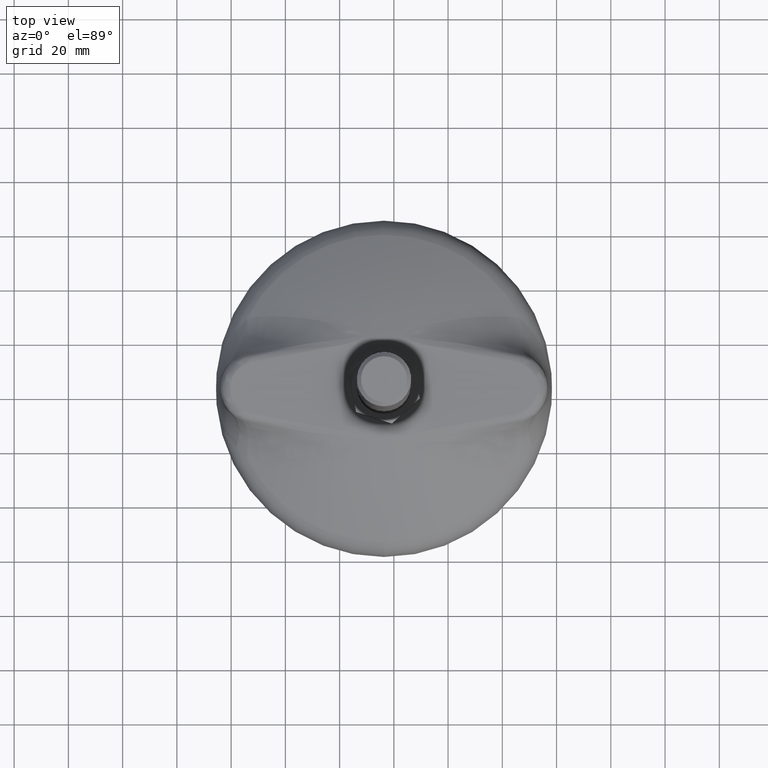
[diagram: clean part render]
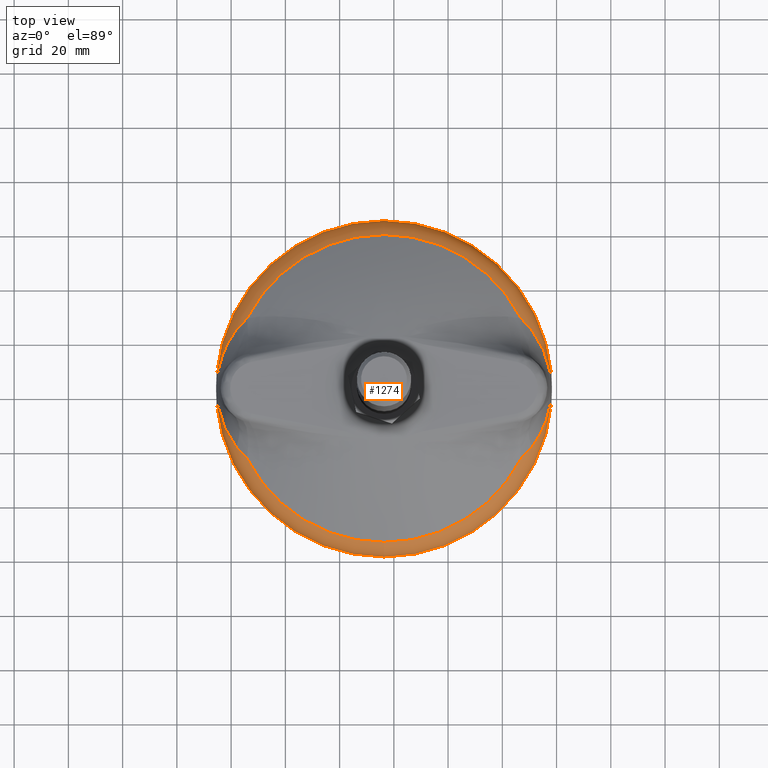
[diagram: same view with one face highlighted and labeled with its STEP entity id]
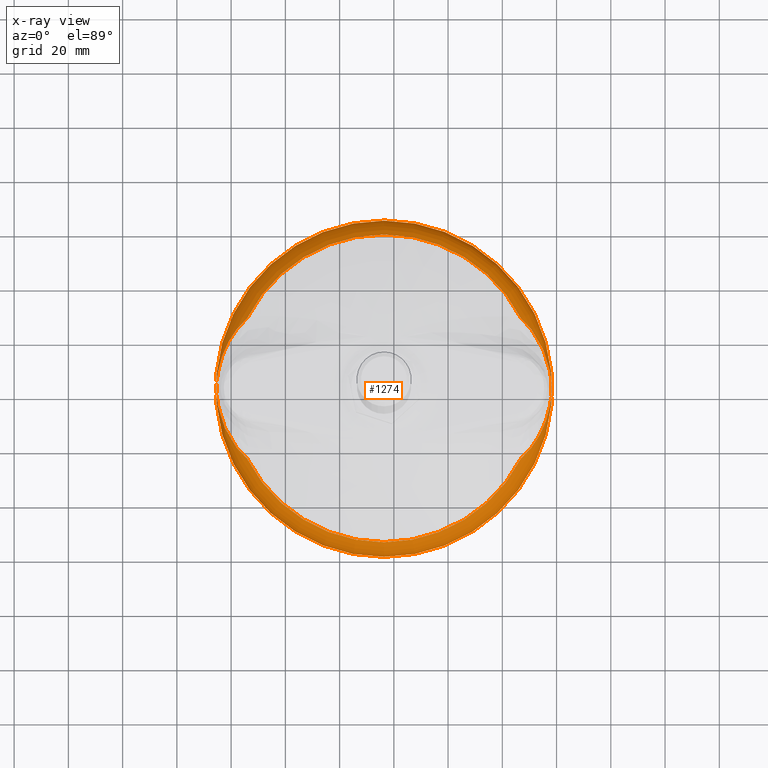
[diagram: x-ray of the same camera — body ghosted, the highlighted face saturated]
A machine part, top view. The second image highlights one B-rep face of the part: STEP entity #1274.
The next image is the same camera in x-ray: the body ghosted, the highlighted face saturated — about 0% of this face is hidden behind the body in this view.
In plain terms, the highlighted toroidal blend (fillet) surface has major radius 52 mm and minor (blend) radius 10 mm.
Its self-contained STEP definition (entity closure, byte-faithful):
#57=B_SPLINE_CURVE_WITH_KNOTS('',3,(#3326,#3327,#3328,#3329,#3330,#3331),
 .UNSPECIFIED.,.F.,.F.,(4,2,4),(3.55820684463569E-9,0.499999999984517,0.999999999962841),
 .UNSPECIFIED.);
#58=B_SPLINE_CURVE_WITH_KNOTS('',3,(#3333,#3334,#3335,#3336,#3337,#3338,
#3339,#3340,#3341,#3342,#3343,#3344,#3345,#3346,#3347,#3348,#3349,#3350,
#3351,#3352,#3353,#3354,#3355,#3356,#3357,#3358,#3359,#3360,#3361,#3362,
#3363,#3364,#3365,#3366,#3367,#3368,#3369,#3370,#3371,#3372,#3373,#3374,
#3375,#3376,#3377,#3378,#3379,#3380,#3381,#3382,#3383,#3384,#3385,#3386,
#3387,#3388,#3389,#3390,#3391,#3392,#3393,#3394,#3395,#3396,#3397,#3398,
#3399,#3400,#3401,#3402,#3403,#3404,#3405,#3406,#3407,#3408,#3409,#3410,
#3411,#3412,#3413,#3414,#3415,#3416,#3417,#3418,#3419,#3420,#3421,#3422,
#3423,#3424,#3425,#3426,#3427,#3428,#3429,#3430,#3431,#3432,#3433,#3434,
#3435,#3436,#3437,#3438,#3439,#3440,#3441,#3442,#3443,#3444,#3445,#3446,
#3447,#3448,#3449,#3450,#3451,#3452,#3453,#3454,#3455,#3456,#3457,#3458,
#3459,#3460,#3461,#3462,#3463,#3464,#3465,#3466,#3467,#3468,#3469,#3470,
#3471,#3472,#3473,#3474,#3475,#3476,#3477,#3478,#3479,#3480,#3481,#3482,
#3483,#3484,#3485,#3486,#3487,#3488,#3489,#3490,#3491,#3492,#3493,#3494,
#3495,#3496,#3497,#3498,#3499,#3500,#3501,#3502,#3503,#3504,#3505,#3506,
#3507,#3508,#3509,#3510,#3511,#3512,#3513,#3514,#3515,#3516,#3517,#3518,
#3519,#3520,#3521,#3522,#3523,#3524,#3525,#3526,#3527,#3528,#3529,#3530,
#3531,#3532,#3533,#3534,#3535,#3536,#3537,#3538,#3539,#3540,#3541,#3542,
#3543,#3544,#3545,#3546,#3547,#3548,#3549,#3550,#3551,#3552,#3553,#3554,
#3555,#3556,#3557,#3558,#3559,#3560,#3561,#3562,#3563,#3564,#3565,#3566,
#3567,#3568,#3569,#3570,#3571,#3572,#3573,#3574,#3575,#3576,#3577,#3578,
#3579,#3580,#3581,#3582,#3583,#3584,#3585,#3586,#3587,#3588),
 .UNSPECIFIED.,.F.,.F.,(4,3,3,3,3,3,3,3,3,3,3,3,3,3,3,3,3,3,3,3,3,3,3,3,
3,3,3,3,3,3,3,3,3,3,3,3,3,3,3,3,3,3,3,3,3,3,3,3,3,3,3,3,3,3,3,3,3,3,3,3,
3,3,3,3,3,3,3,3,3,3,3,3,3,3,3,3,3,3,3,3,3,3,3,3,3,4),(1.44692526029567E-5,
0.0320838109708294,0.0616225803048672,0.0625,0.0963312664883411,0.123302537881147,
0.125,0.158717675990419,0.185279686610295,0.1875,0.200849301318562,0.216433236393102,
0.21875,0.247549266973116,0.25,0.282303697837557,0.309676901226445,0.3125,
0.34221437989486,0.370264382404118,0.37192875978972,0.375,0.395901863013811,
0.403250381690188,0.40625,0.419015668986609,0.434886546365988,0.4375,0.447513717649022,
0.450902995135694,0.453125,0.460170099697721,0.467215199395441,0.46875,
0.474481669662616,0.475599624591294,0.479881975787905,0.484230174122877,
0.484375,0.489305721254212,0.4921875,0.493115599676204,0.496808731341628,
0.497668312783484,0.5,0.502236149073312,0.511252190969143,0.515625,0.515690254387305,
0.520057766537639,0.525006068925118,0.528577273928898,0.53125,0.536908707195816,
0.545115130849648,0.546875,0.553225467030536,0.5625,0.569261932622031,0.584349787457553,
0.585157225387494,0.59375,0.600973256815271,0.623169606540888,0.625,0.632429084818905,
0.660073794782602,0.6875,0.694947110174329,0.727003176622456,0.750000000000001,
0.757327503305466,0.781250000000001,0.788564466422782,0.804198834923986,
0.812500000000001,0.819810171029507,0.853469609596223,0.875,0.882021285274495,
0.915219150054964,0.9375,0.944045680349106,0.975070318365031,0.990594853399532,
1.),.UNSPECIFIED.);
#59=B_SPLINE_CURVE_WITH_KNOTS('',3,(#3590,#3591,#3592,#3593,#3594,#3595),
 .UNSPECIFIED.,.F.,.F.,(4,2,4),(0.,0.5,0.999999998530311),.UNSPECIFIED.);
#60=B_SPLINE_CURVE_WITH_KNOTS('',3,(#3599,#3600,#3601,#3602,#3603,#3604),
 .UNSPECIFIED.,.F.,.F.,(4,2,4),(1.53131502328517E-9,0.5,0.999999999999999),
 .UNSPECIFIED.);
#61=B_SPLINE_CURVE_WITH_KNOTS('',3,(#3606,#3607,#3608,#3609,#3610,#3611,
#3612,#3613,#3614,#3615,#3616,#3617,#3618,#3619,#3620,#3621,#3622,#3623,
#3624,#3625,#3626,#3627,#3628,#3629,#3630,#3631,#3632,#3633,#3634,#3635,
#3636,#3637,#3638,#3639,#3640,#3641,#3642,#3643,#3644,#3645,#3646,#3647,
#3648,#3649,#3650,#3651,#3652,#3653,#3654,#3655,#3656,#3657,#3658,#3659,
#3660,#3661,#3662,#3663,#3664,#3665,#3666,#3667,#3668,#3669,#3670,#3671,
#3672,#3673,#3674,#3675,#3676,#3677,#3678,#3679,#3680,#3681,#3682,#3683,
#3684,#3685,#3686,#3687,#3688,#3689,#3690,#3691,#3692,#3693,#3694,#3695,
#3696,#3697,#3698,#3699,#3700,#3701,#3702,#3703,#3704,#3705,#3706,#3707,
#3708,#3709,#3710,#3711,#3712,#3713,#3714,#3715,#3716,#3717,#3718,#3719,
#3720,#3721,#3722,#3723,#3724,#3725,#3726,#3727,#3728,#3729,#3730,#3731,
#3732,#3733,#3734,#3735,#3736,#3737,#3738,#3739,#3740,#3741,#3742,#3743,
#3744,#3745,#3746,#3747,#3748,#3749,#3750,#3751,#3752,#3753,#3754,#3755,
#3756,#3757,#3758,#3759,#3760,#3761,#3762,#3763,#3764,#3765,#3766,#3767,
#3768,#3769,#3770,#3771,#3772,#3773,#3774,#3775,#3776,#3777,#3778,#3779,
#3780,#3781,#3782,#3783,#3784,#3785,#3786,#3787,#3788,#3789,#3790,#3791,
#3792,#3793,#3794,#3795,#3796,#3797,#3798,#3799,#3800,#3801,#3802,#3803,
#3804,#3805,#3806,#3807,#3808,#3809,#3810,#3811,#3812,#3813,#3814,#3815,
#3816,#3817,#3818,#3819,#3820,#3821,#3822,#3823,#3824,#3825,#3826,#3827,
#3828,#3829,#3830,#3831,#3832,#3833,#3834,#3835,#3836,#3837,#3838,#3839,
#3840,#3841,#3842,#3843,#3844,#3845,#3846,#3847,#3848,#3849,#3850,#3851,
#3852,#3853,#3854,#3855,#3856,#3857,#3858,#3859,#3860,#3861,#3862,#3863,
#3864,#3865,#3866,#3867),.UNSPECIFIED.,.F.,.F.,(4,3,3,3,3,3,3,3,3,3,3,3,
3,3,3,3,3,3,3,3,3,3,3,3,3,3,3,3,3,3,3,3,3,3,3,3,3,3,3,3,3,3,3,3,3,3,3,3,
3,3,3,3,3,3,3,3,3,3,3,3,3,3,3,3,3,3,3,3,3,3,3,3,3,3,3,3,3,3,3,3,3,3,3,3,
3,3,3,4),(3.44096211603762E-15,0.034034216426295,0.0553053702764947,0.0625,
0.0708013597669976,0.0863496654634957,0.09375,0.117423645351877,0.125,0.159587233360697,
0.179516456591497,0.214009235618722,0.241737337654534,0.249999999999999,
0.257334370389645,0.272922248348122,0.304063577737818,0.312499999999999,
0.340640234777023,0.36632470879307,0.374999999999999,0.395554806343867,
0.397565505342242,0.406249999999999,0.42111839135818,0.429040797523615,
0.437499999999999,0.444970994188768,0.453124999999999,0.460356694142986,
0.461177026214705,0.46712848599099,0.468749999999999,0.469474086069111,
0.475524391477148,0.477954107914681,0.483032030716594,0.484374999999999,
0.486663113710319,0.491140558477904,0.495031470758377,0.495676276426889,
0.500000000000001,0.504342069446232,0.504785089307414,0.509322325731437,
0.513800992032918,0.515624999999999,0.52037583990045,0.522509799810186,
0.528142114619892,0.530986704571709,0.531249999999999,0.537905126769628,
0.539298619601583,0.546874999999999,0.547474943167713,0.557133080791351,
0.562499999999999,0.56358349846204,0.57866674923102,0.593749999999999,0.595339533947483,
0.617012668245295,0.624999999999999,0.626855554232873,0.642572555751263,
0.656249999999999,0.65825580533241,0.687499999999999,0.689534404266117,
0.722071156067809,0.749999999999999,0.751918635849568,0.784657048620632,
0.812499999999999,0.814317092317138,0.832820536878801,0.843749999999999,
0.845571899292108,0.873225787966639,0.875,0.876686891630682,0.910805352017995,
0.9375,0.938514403403925,0.972231675969963,0.999985535599159),
 .UNSPECIFIED.);
#62=B_SPLINE_CURVE_WITH_KNOTS('',3,(#3868,#3869,#3870,#3871,#3872,#3873),
 .UNSPECIFIED.,.F.,.F.,(4,2,4),(3.71510253484044E-11,0.500000000015478,
0.999999997276194),.UNSPECIFIED.);
#93=TOROIDAL_SURFACE('',#1486,52.0000000000002,10.);
#255=FACE_OUTER_BOUND('',#338,.T.);
#338=EDGE_LOOP('',(#1010,#1011,#1012,#1013,#1014,#1015,#1016,#1017,#1018,
#1019,#1020,#1021));
#483=CIRCLE('',#1476,61.9939021775577);
#490=CIRCLE('',#1484,56.7491782872209);
#491=CIRCLE('',#1485,56.7491782872209);
#492=CIRCLE('',#1487,10.);
#493=CIRCLE('',#1488,56.7491782872209);
#596=VERTEX_POINT('',#2798);
#603=VERTEX_POINT('',#2830);
#604=VERTEX_POINT('',#2831);
#607=VERTEX_POINT('',#3308);
#608=VERTEX_POINT('',#3325);
#609=VERTEX_POINT('',#3332);
#610=VERTEX_POINT('',#3589);
#611=VERTEX_POINT('',#3596);
#612=VERTEX_POINT('',#3598);
#613=VERTEX_POINT('',#3605);
#744=EDGE_CURVE('',#596,#596,#483,.T.);
#752=EDGE_CURVE('',#603,#604,#490,.T.);
#757=EDGE_CURVE('',#604,#607,#491,.T.);
#758=EDGE_CURVE('',#596,#604,#492,.T.);
#759=EDGE_CURVE('',#607,#608,#57,.T.);
#760=EDGE_CURVE('',#608,#609,#58,.T.);
#761=EDGE_CURVE('',#609,#610,#59,.T.);
#762=EDGE_CURVE('',#610,#611,#493,.T.);
#763=EDGE_CURVE('',#611,#612,#60,.T.);
#764=EDGE_CURVE('',#612,#613,#61,.T.);
#765=EDGE_CURVE('',#613,#603,#62,.T.);
#1010=ORIENTED_EDGE('',*,*,#744,.F.);
#1011=ORIENTED_EDGE('',*,*,#758,.T.);
#1012=ORIENTED_EDGE('',*,*,#757,.T.);
#1013=ORIENTED_EDGE('',*,*,#759,.T.);
#1014=ORIENTED_EDGE('',*,*,#760,.T.);
#1015=ORIENTED_EDGE('',*,*,#761,.T.);
#1016=ORIENTED_EDGE('',*,*,#762,.T.);
#1017=ORIENTED_EDGE('',*,*,#763,.T.);
#1018=ORIENTED_EDGE('',*,*,#764,.T.);
#1019=ORIENTED_EDGE('',*,*,#765,.T.);
#1020=ORIENTED_EDGE('',*,*,#752,.T.);
#1021=ORIENTED_EDGE('',*,*,#758,.F.);
#1274=ADVANCED_FACE('',(#255),#93,.T.);
#1476=AXIS2_PLACEMENT_3D('',#2800,#1730,#1731);
#1484=AXIS2_PLACEMENT_3D('',#2832,#1747,#1748);
#1485=AXIS2_PLACEMENT_3D('',#3322,#1749,#1750);
#1486=AXIS2_PLACEMENT_3D('',#3323,#1751,#1752);
#1487=AXIS2_PLACEMENT_3D('',#3324,#1753,#1754);
#1488=AXIS2_PLACEMENT_3D('',#3597,#1755,#1756);
#1730=DIRECTION('center_axis',(0.,-1.171453E-15,-1.));
#1731=DIRECTION('ref_axis',(0.,1.,-1.171453E-15));
#1747=DIRECTION('center_axis',(0.,-1.171453E-15,-1.));
#1748=DIRECTION('ref_axis',(0.,1.,-1.171453E-15));
#1749=DIRECTION('center_axis',(0.,-1.171453E-15,-1.));
#1750=DIRECTION('ref_axis',(0.,1.,-1.171453E-15));
#1751=DIRECTION('center_axis',(0.,-1.171453E-15,-1.));
#1752=DIRECTION('ref_axis',(0.,1.,-1.17145300077073E-15));
#1753=DIRECTION('center_axis',(-1.,1.22464679914735E-16,-1.43461616680156E-31));
#1754=DIRECTION('ref_axis',(-1.22464679914735E-16,-1.,1.17145300418618E-15));
#1755=DIRECTION('center_axis',(0.,-1.171453E-15,-1.));
#1756=DIRECTION('ref_axis',(0.,1.,-1.171453E-15));
#2798=CARTESIAN_POINT('',(7.59206338684002E-15,-61.9939021775578,0.349176871077005));
#2800=CARTESIAN_POINT('Origin',(0.,-4.270265E-14,0.349176871076932));
#2830=CARTESIAN_POINT('',(50.5336448544281,-25.8228575586019,8.8003089338437));
#2831=CARTESIAN_POINT('',(-6.94976995436875E-15,-56.7491782872209,8.80030892666654));
#2832=CARTESIAN_POINT('Origin',(0.,-2.290244E-14,8.80030892666647));
#3308=CARTESIAN_POINT('',(-50.5336448545111,-25.8228575586374,8.80030893379514));
#3322=CARTESIAN_POINT('Origin',(0.,-2.290244E-14,8.80030892666647));
#3323=CARTESIAN_POINT('Origin',(0.,-4.352073E-14,7.477500617E-6));
#3324=CARTESIAN_POINT('Origin',(-6.36816335556626E-15,-52.0000000000002,
7.47750067791556E-6));
#3325=CARTESIAN_POINT('',(-54.4117059548261,-21.740543015552,7.517719859501));
#3326=CARTESIAN_POINT('Ctrl Pts',(-50.5336448435174,-25.8228575332502,8.80030894531245));
#3327=CARTESIAN_POINT('Ctrl Pts',(-51.2570590696162,-25.2108289293928,8.60296204754627));
#3328=CARTESIAN_POINT('Ctrl Pts',(-51.9404912244675,-24.5647809432962,8.39299832195783));
#3329=CARTESIAN_POINT('Ctrl Pts',(-53.2317199071242,-23.2044923502681,7.96141510363573));
#3330=CARTESIAN_POINT('Ctrl Pts',(-53.8395058069299,-22.490249545429,7.73977047035879));
#3331=CARTESIAN_POINT('Ctrl Pts',(-54.4109568990307,-21.7415244884193,7.5180105497073));
#3332=CARTESIAN_POINT('',(-54.4166471951734,21.7340656229396,7.51580128591876));
#3333=CARTESIAN_POINT('Ctrl Pts',(-54.4130313307887,-21.7428244980441,7.51589722403689));
#3334=CARTESIAN_POINT('Ctrl Pts',(-54.7198114380677,-21.3405099720534,7.39689217669323));
#3335=CARTESIAN_POINT('Ctrl Pts',(-55.0166531963345,-20.9331373699154,7.27585142081938));
#3336=CARTESIAN_POINT('Ctrl Pts',(-55.3038526039356,-20.5208347680797,7.15291550914573));
#3337=CARTESIAN_POINT('Ctrl Pts',(-55.5683892797596,-20.1410667155125,7.03968039600545));
#3338=CARTESIAN_POINT('Ctrl Pts',(-55.8247460913709,-19.7571161933036,6.92483755666388));
#3339=CARTESIAN_POINT('Ctrl Pts',(-56.0731891900876,-19.3690996981028,6.80850344788314));
#3340=CARTESIAN_POINT('Ctrl Pts',(-56.0805689446559,-19.3575740549361,6.80504785915818));
#3341=CARTESIAN_POINT('Ctrl Pts',(-56.0879417132513,-19.3460448224977,6.80159095185634));
#3342=CARTESIAN_POINT('Ctrl Pts',(-56.0953074983247,-19.3345120023057,6.79813272786053));
#3343=CARTESIAN_POINT('Ctrl Pts',(-56.3793150708637,-18.88983322949,6.66479163895226));
#3344=CARTESIAN_POINT('Ctrl Pts',(-56.6529366298109,-18.4398196405035,6.52949173313023));
#3345=CARTESIAN_POINT('Ctrl Pts',(-56.9163545360694,-17.9845414139642,6.39233725763171));
#3346=CARTESIAN_POINT('Ctrl Pts',(-57.1263589661982,-17.6215803462355,6.28299371346722));
#3347=CARTESIAN_POINT('Ctrl Pts',(-57.3298791552493,-17.2552736877945,6.17247163248903));
#3348=CARTESIAN_POINT('Ctrl Pts',(-57.5270270089824,-16.8856698605232,6.06082783637365));
#3349=CARTESIAN_POINT('Ctrl Pts',(-57.5394346930197,-16.8624084989567,6.05380142994471));
#3350=CARTESIAN_POINT('Ctrl Pts',(-57.5518171297453,-16.8391340902513,6.04677057750715));
#3351=CARTESIAN_POINT('Ctrl Pts',(-57.5641743216849,-16.8158466343799,6.03973528745821));
#3352=CARTESIAN_POINT('Ctrl Pts',(-57.8096324025137,-16.3532743725352,5.8999892349638));
#3353=CARTESIAN_POINT('Ctrl Pts',(-58.0451293037977,-15.8855494532665,5.75848881610017));
#3354=CARTESIAN_POINT('Ctrl Pts',(-58.2707121480503,-15.4126735676376,5.61530077678415));
#3355=CARTESIAN_POINT('Ctrl Pts',(-58.4484211309114,-15.0401528073239,5.50250052856917));
#3356=CARTESIAN_POINT('Ctrl Pts',(-58.6199783290762,-14.6644359592659,5.38865312685408));
#3357=CARTESIAN_POINT('Ctrl Pts',(-58.7854239212598,-14.2855383700406,5.27379510787823));
#3358=CARTESIAN_POINT('Ctrl Pts',(-58.7992534866813,-14.2538663929932,5.2641941480301));
#3359=CARTESIAN_POINT('Ctrl Pts',(-58.8130402359899,-14.2221721215841,5.25458610307931));
#3360=CARTESIAN_POINT('Ctrl Pts',(-58.8267841631542,-14.1904555450028,5.24497098860248));
#3361=CARTESIAN_POINT('Ctrl Pts',(-58.9094174643207,-13.9997643842229,5.18716155460144));
#3362=CARTESIAN_POINT('Ctrl Pts',(-58.9904659370942,-13.808355122697,5.12912317872785));
#3363=CARTESIAN_POINT('Ctrl Pts',(-59.0700158082692,-13.6160184500555,5.07079645423933));
#3364=CARTESIAN_POINT('Ctrl Pts',(-59.1628820937769,-13.3914851844283,5.00270600771717));
#3365=CARTESIAN_POINT('Ctrl Pts',(-59.253560579569,-13.1660242880102,4.93432454550135));
#3366=CARTESIAN_POINT('Ctrl Pts',(-59.3418350409561,-12.9402380522317,4.86584160824742));
#3367=CARTESIAN_POINT('Ctrl Pts',(-59.3549582385684,-12.9066718616971,4.85566068950228));
#3368=CARTESIAN_POINT('Ctrl Pts',(-59.3680308190733,-12.8730924200147,4.84547568587157));
#3369=CARTESIAN_POINT('Ctrl Pts',(-59.3810532684298,-12.8394986229387,4.83528628745271));
#3370=CARTESIAN_POINT('Ctrl Pts',(-59.542932967569,-12.4219002422705,4.70862372918122));
#3371=CARTESIAN_POINT('Ctrl Pts',(-59.6969278953514,-12.0024333727269,4.58138721595264));
#3372=CARTESIAN_POINT('Ctrl Pts',(-59.8431878381598,-11.5811202275399,4.45363427040419));
#3373=CARTESIAN_POINT('Ctrl Pts',(-59.8556341296812,-11.545267716414,4.4427628699887));
#3374=CARTESIAN_POINT('Ctrl Pts',(-59.8680245571211,-11.5094019330197,4.43188768854127));
#3375=CARTESIAN_POINT('Ctrl Pts',(-59.8803591556971,-11.4735228660072,4.4210087726739));
#3376=CARTESIAN_POINT('Ctrl Pts',(-60.0429444479236,-11.0005923073736,4.27761118218783));
#3377=CARTESIAN_POINT('Ctrl Pts',(-60.1958295462521,-10.5253495354964,4.13355772338987));
#3378=CARTESIAN_POINT('Ctrl Pts',(-60.3391166009082,-10.0477846431564,3.98896200385565));
#3379=CARTESIAN_POINT('Ctrl Pts',(-60.4605338364773,-9.64311020015145,3.86643584416099));
#3380=CARTESIAN_POINT('Ctrl Pts',(-60.5750602867069,-9.23676847047709,3.74352036128011));
#3381=CARTESIAN_POINT('Ctrl Pts',(-60.6827864393119,-8.82876072133846,3.62028529959608));
#3382=CARTESIAN_POINT('Ctrl Pts',(-60.6938966321884,-8.78668138704097,3.60757561609442));
#3383=CARTESIAN_POINT('Ctrl Pts',(-60.7049345159362,-8.74458482438421,3.59486225970671));
#3384=CARTESIAN_POINT('Ctrl Pts',(-60.7159000799022,-8.70247082638144,3.58214541607595));
#3385=CARTESIAN_POINT('Ctrl Pts',(-60.8313175553728,-8.25920212205265,3.44829493721653));
#3386=CARTESIAN_POINT('Ctrl Pts',(-60.9387284019669,-7.81398030951274,3.31403944946452));
#3387=CARTESIAN_POINT('Ctrl Pts',(-61.0381051047074,-7.36671880376226,3.17964875499826));
#3388=CARTESIAN_POINT('Ctrl Pts',(-61.1319154676056,-6.94450954336421,3.05278562238914));
#3389=CARTESIAN_POINT('Ctrl Pts',(-61.2185670361181,-6.52048249136002,2.92580213684896));
#3390=CARTESIAN_POINT('Ctrl Pts',(-61.2980831565227,-6.09458892002283,2.79892218168473));
#3391=CARTESIAN_POINT('Ctrl Pts',(-61.3028013319506,-6.06931806207645,2.79139362164301));
#3392=CARTESIAN_POINT('Ctrl Pts',(-61.3074943981135,-6.04404064046004,2.78386542484204));
#3393=CARTESIAN_POINT('Ctrl Pts',(-61.3121623647992,-6.01875664806855,2.77633763754625));
#3394=CARTESIAN_POINT('Ctrl Pts',(-61.3207760644984,-5.97210063436584,2.76244677166617));
#3395=CARTESIAN_POINT('Ctrl Pts',(-61.3293041241839,-5.92542211305212,2.74855734697086));
#3396=CARTESIAN_POINT('Ctrl Pts',(-61.3377464571645,-5.87872010720623,2.73467018181605));
#3397=CARTESIAN_POINT('Ctrl Pts',(-61.3952022324854,-5.5608814290743,2.64015864776396));
#3398=CARTESIAN_POINT('Ctrl Pts',(-61.4486836838486,-5.24197616102857,2.54574710778726));
#3399=CARTESIAN_POINT('Ctrl Pts',(-61.4981434202534,-4.9219089643923,2.45176200854458));
#3400=CARTESIAN_POINT('Ctrl Pts',(-61.5155320997438,-4.80938216376101,2.41871943924682));
#3401=CARTESIAN_POINT('Ctrl Pts',(-61.532424013043,-4.69671204657505,2.38572946894297));
#3402=CARTESIAN_POINT('Ctrl Pts',(-61.5488181746382,-4.58389552733605,2.35280588483252));
#3403=CARTESIAN_POINT('Ctrl Pts',(-61.5555101665159,-4.53784454595305,2.33936668843504));
#3404=CARTESIAN_POINT('Ctrl Pts',(-61.5621191595373,-4.49176865899814,2.32593884606735));
#3405=CARTESIAN_POINT('Ctrl Pts',(-61.5686449736931,-4.44566613856631,2.31252418215805));
#3406=CARTESIAN_POINT('Ctrl Pts',(-61.5964173016286,-4.24946467074755,2.25543453229409));
#3407=CARTESIAN_POINT('Ctrl Pts',(-61.622675983725,-4.05283545402179,2.19859534259904));
#3408=CARTESIAN_POINT('Ctrl Pts',(-61.6474124206739,-3.85565090757627,2.14214592659824));
#3409=CARTESIAN_POINT('Ctrl Pts',(-61.6781659172616,-3.61050184715275,2.07196536963519));
#3410=CARTESIAN_POINT('Ctrl Pts',(-61.7065604643837,-3.36450809681998,2.00237795532341));
#3411=CARTESIAN_POINT('Ctrl Pts',(-61.7324632154007,-3.1182170897093,1.93417752062844));
#3412=CARTESIAN_POINT('Ctrl Pts',(-61.7367286153,-3.07766040767014,1.92294697113618));
#3413=CARTESIAN_POINT('Ctrl Pts',(-61.7409275197424,-3.03709013362612,1.91175089916122));
#3414=CARTESIAN_POINT('Ctrl Pts',(-61.7450596520674,-2.99650079590951,1.90059411582734));
#3415=CARTESIAN_POINT('Ctrl Pts',(-61.7608923440472,-2.84097855431882,1.85784574764404));
#3416=CARTESIAN_POINT('Ctrl Pts',(-61.775740613008,-2.68523111003019,1.81567672325395));
#3417=CARTESIAN_POINT('Ctrl Pts',(-61.7895720961501,-2.52917211853212,1.77442765115203));
#3418=CARTESIAN_POINT('Ctrl Pts',(-61.7942535477412,-2.47635185287095,1.76046634763606));
#3419=CARTESIAN_POINT('Ctrl Pts',(-61.7988186534822,-2.4234962081356,1.74661017284609));
#3420=CARTESIAN_POINT('Ctrl Pts',(-61.8032665711175,-2.37060286803741,1.73287148821184));
#3421=CARTESIAN_POINT('Ctrl Pts',(-61.806182618759,-2.33592607941515,1.72386442868175));
#3422=CARTESIAN_POINT('Ctrl Pts',(-61.8090486268175,-2.30123650738852,1.7149052619928));
#3423=CARTESIAN_POINT('Ctrl Pts',(-61.8118638448828,-2.26652749794164,1.70600204732307));
#3424=CARTESIAN_POINT('Ctrl Pts',(-61.8207897893123,-2.15647893959215,1.67777347051568));
#3425=CARTESIAN_POINT('Ctrl Pts',(-61.8292078984563,-2.04625488629552,1.65008421544199));
#3426=CARTESIAN_POINT('Ctrl Pts',(-61.8370871734894,-1.93577788402633,1.62322368598416));
#3427=CARTESIAN_POINT('Ctrl Pts',(-61.8449664485225,-1.82530088175714,1.59636315652633));
#3428=CARTESIAN_POINT('Ctrl Pts',(-61.8523068597014,-1.71457019202486,1.57033186404392));
#3429=CARTESIAN_POINT('Ctrl Pts',(-61.859087978244,-1.60354984648908,1.54538655773517));
#3430=CARTESIAN_POINT('Ctrl Pts',(-61.8605652695933,-1.57936366023798,1.53995213198589));
#3431=CARTESIAN_POINT('Ctrl Pts',(-61.8620159250347,-1.5551623748007,1.53457027912123));
#3432=CARTESIAN_POINT('Ctrl Pts',(-61.8634394270629,-1.53094211571421,1.52924631916706));
#3433=CARTESIAN_POINT('Ctrl Pts',(-61.8687554553246,-1.44049223980566,1.50936414055462));
#3434=CARTESIAN_POINT('Ctrl Pts',(-61.8736823475546,-1.34998076203832,1.49032432584619));
#3435=CARTESIAN_POINT('Ctrl Pts',(-61.8782063661399,-1.25914474483295,1.47235316439281));
#3436=CARTESIAN_POINT('Ctrl Pts',(-61.8790887702512,-1.24142729440161,1.46884791204864));
#3437=CARTESIAN_POINT('Ctrl Pts',(-61.8799558601422,-1.22369762302633,1.46538321919506));
#3438=CARTESIAN_POINT('Ctrl Pts',(-61.8808075522817,-1.20595396244262,1.46196062511028));
#3439=CARTESIAN_POINT('Ctrl Pts',(-61.8840699779477,-1.13798647629114,1.44885030241436));
#3440=CARTESIAN_POINT('Ctrl Pts',(-61.8871053891752,-1.06980287969836,1.4363659477061));
#3441=CARTESIAN_POINT('Ctrl Pts',(-61.8899019162779,-1.00123720645759,1.42464463090695));
#3442=CARTESIAN_POINT('Ctrl Pts',(-61.8927414438956,-0.931617240104132,
1.41274308247019));
#3443=CARTESIAN_POINT('Ctrl Pts',(-61.8953329074867,-0.861595483850795,
1.40163455575615));
#3444=CARTESIAN_POINT('Ctrl Pts',(-61.8976359855162,-0.791794822965323,
1.39160035431715));
#3445=CARTESIAN_POINT('Ctrl Pts',(-61.8977126943667,-0.789469965367366,
1.39126614416557));
#3446=CARTESIAN_POINT('Ctrl Pts',(-61.8977890930856,-0.787145160476482,
1.39093308566767));
#3447=CARTESIAN_POINT('Ctrl Pts',(-61.8978651810585,-0.78482040500789,1.39060118575465));
#3448=CARTESIAN_POINT('Ctrl Pts',(-61.9004556613833,-0.705672110327668,
1.37930136842986));
#3449=CARTESIAN_POINT('Ctrl Pts',(-61.9026918665701,-0.626385201573858,
1.36931916581122));
#3450=CARTESIAN_POINT('Ctrl Pts',(-61.9045454256489,-0.546925021632316,
1.36093615896032));
#3451=CARTESIAN_POINT('Ctrl Pts',(-61.9056287452856,-0.500484217967653,
1.35603667879845));
#3452=CARTESIAN_POINT('Ctrl Pts',(-61.9065814909628,-0.453984642640518,
1.35168267989198));
#3453=CARTESIAN_POINT('Ctrl Pts',(-61.9073991991869,-0.407423254607008,
1.34792307062733));
#3454=CARTESIAN_POINT('Ctrl Pts',(-61.9076625485988,-0.392427790704497,
1.34671225867784));
#3455=CARTESIAN_POINT('Ctrl Pts',(-61.9079116455957,-0.377440218111502,
1.34556423738186));
#3456=CARTESIAN_POINT('Ctrl Pts',(-61.9081465327287,-0.362453971045446,
1.34447973314647));
#3457=CARTESIAN_POINT('Ctrl Pts',(-61.9090812050826,-0.302820092266472,
1.34016423015075));
#3458=CARTESIAN_POINT('Ctrl Pts',(-61.9097908089121,-0.243206755074192,
1.33685515421075));
#3459=CARTESIAN_POINT('Ctrl Pts',(-61.9102702908421,-0.18319192394278,1.33461279380265));
#3460=CARTESIAN_POINT('Ctrl Pts',(-61.9103818909165,-0.169223389985647,
1.33409088135344));
#3461=CARTESIAN_POINT('Ctrl Pts',(-61.9104809806898,-0.15523300454755,1.33362694606525));
#3462=CARTESIAN_POINT('Ctrl Pts',(-61.910567413591,-0.141215250376614,1.33322211460338));
#3463=CARTESIAN_POINT('Ctrl Pts',(-61.9108018701314,-0.103190908978451,
1.33212397509206));
#3464=CARTESIAN_POINT('Ctrl Pts',(-61.9109409986416,-0.065302799923005,
1.33147146518826));
#3465=CARTESIAN_POINT('Ctrl Pts',(-61.9109864598013,-0.0274675857086537,
1.33125796853167));
#3466=CARTESIAN_POINT('Ctrl Pts',(-61.9110300582435,0.00881737507197043,
1.33105321964966));
#3467=CARTESIAN_POINT('Ctrl Pts',(-61.9109873858037,0.0450686889823404,
1.33125281483718));
#3468=CARTESIAN_POINT('Ctrl Pts',(-61.9108587255953,0.0812788279966683,
1.33185648274423));
#3469=CARTESIAN_POINT('Ctrl Pts',(-61.9103399740309,0.227276308354075,1.33429044173476));
#3470=CARTESIAN_POINT('Ctrl Pts',(-61.9084216846743,0.372732594177027,1.34334404008062));
#3471=CARTESIAN_POINT('Ctrl Pts',(-61.9051962239082,0.518277272373761,1.35798553927764));
#3472=CARTESIAN_POINT('Ctrl Pts',(-61.9036318651652,0.58886690478288,1.36508671301371));
#3473=CARTESIAN_POINT('Ctrl Pts',(-61.9017531036238,0.659720378097506,1.37352070973156));
#3474=CARTESIAN_POINT('Ctrl Pts',(-61.8996002231833,0.730042735187447,1.38299814549741));
#3475=CARTESIAN_POINT('Ctrl Pts',(-61.8995680962615,0.731092138967336,1.38313957501326));
#3476=CARTESIAN_POINT('Ctrl Pts',(-61.8995359058515,0.732141504711947,1.3832812474979));
#3477=CARTESIAN_POINT('Ctrl Pts',(-61.8995036520797,0.733190829077619,1.38342316199372));
#3478=CARTESIAN_POINT('Ctrl Pts',(-61.8973448893335,0.803422687900032,1.39292157750898));
#3479=CARTESIAN_POINT('Ctrl Pts',(-61.8949065858137,0.87341267659998,1.40348590064834));
#3480=CARTESIAN_POINT('Ctrl Pts',(-61.8922070985242,0.943223305335343,1.41492785904248));
#3481=CARTESIAN_POINT('Ctrl Pts',(-61.8891486343597,1.02231732704656,1.42789136505923));
#3482=CARTESIAN_POINT('Ctrl Pts',(-61.8857566861731,1.10119524487972,1.44196780050352));
#3483=CARTESIAN_POINT('Ctrl Pts',(-61.8820501670064,1.17988283158361,1.45694601520485));
#3484=CARTESIAN_POINT('Ctrl Pts',(-61.8793751607602,1.23667190415189,1.4677558386757));
#3485=CARTESIAN_POINT('Ctrl Pts',(-61.8765364782953,1.29336279439736,1.47903444198114));
#3486=CARTESIAN_POINT('Ctrl Pts',(-61.873543570591,1.34997708836051,1.49069101642474));
#3487=CARTESIAN_POINT('Ctrl Pts',(-61.8713036480883,1.39234780057451,1.49941491504781));
#3488=CARTESIAN_POINT('Ctrl Pts',(-61.8689770843922,1.43467385536423,1.50835220643865));
#3489=CARTESIAN_POINT('Ctrl Pts',(-61.8665662515074,1.47694980168851,1.51747884029658));
#3490=CARTESIAN_POINT('Ctrl Pts',(-61.861462025698,1.56645661806662,1.5368017889683));
#3491=CARTESIAN_POINT('Ctrl Pts',(-61.8559815611952,1.65572191536601,1.55696637082657));
#3492=CARTESIAN_POINT('Ctrl Pts',(-61.8501414098344,1.74488908583585,1.57776587795265));
#3493=CARTESIAN_POINT('Ctrl Pts',(-61.8416718505145,1.87420193973825,1.60792993510581));
#3494=CARTESIAN_POINT('Ctrl Pts',(-61.8324393568572,2.00334024790336,1.63945376342575));
#3495=CARTESIAN_POINT('Ctrl Pts',(-61.8225096803805,2.13203172216984,1.67182027607354));
#3496=CARTESIAN_POINT('Ctrl Pts',(-61.8203802593268,2.15962963388248,1.67876128101261));
#3497=CARTESIAN_POINT('Ctrl Pts',(-61.8182184232232,2.1872126761545,1.68574252152262));
#3498=CARTESIAN_POINT('Ctrl Pts',(-61.816024318057,2.21478208424859,1.69276162178149));
#3499=CARTESIAN_POINT('Ctrl Pts',(-61.8081069154952,2.31426596753492,1.71808996211239));
#3500=CARTESIAN_POINT('Ctrl Pts',(-61.7997710600289,2.41355147788779,1.74390456255092));
#3501=CARTESIAN_POINT('Ctrl Pts',(-61.7910271672076,2.51270564799646,1.77008198808461));
#3502=CARTESIAN_POINT('Ctrl Pts',(-61.7782571580316,2.65751525259888,1.80831278197747));
#3503=CARTESIAN_POINT('Ctrl Pts',(-61.7646177817081,2.80206266242717,1.84730527750137));
#3504=CARTESIAN_POINT('Ctrl Pts',(-61.7501326897805,2.94634018094743,1.8868218370555));
#3505=CARTESIAN_POINT('Ctrl Pts',(-61.7395718113016,3.05153090724276,1.91563280942891));
#3506=CARTESIAN_POINT('Ctrl Pts',(-61.7285620883467,3.15656553736185,1.94472378490906));
#3507=CARTESIAN_POINT('Ctrl Pts',(-61.717109053464,3.26150819525453,1.97401904474722));
#3508=CARTESIAN_POINT('Ctrl Pts',(-61.6915539736673,3.49566604284682,2.03938536123003));
#3509=CARTESIAN_POINT('Ctrl Pts',(-61.6637866080567,3.72932189409568,2.10579847792356));
#3510=CARTESIAN_POINT('Ctrl Pts',(-61.6338395323085,3.96260418529314,2.17281561916798));
#3511=CARTESIAN_POINT('Ctrl Pts',(-61.6322368919654,3.97508846303507,2.17640209202227));
#3512=CARTESIAN_POINT('Ctrl Pts',(-61.630628015963,3.98757167943767,2.17999028958258));
#3513=CARTESIAN_POINT('Ctrl Pts',(-61.6290129116285,4.00005385691063,2.18358014233297));
#3514=CARTESIAN_POINT('Ctrl Pts',(-61.6118249309713,4.13288950126322,2.22178344494281));
#3515=CARTESIAN_POINT('Ctrl Pts',(-61.5939240306764,4.26564833656921,2.26019094495383));
#3516=CARTESIAN_POINT('Ctrl Pts',(-61.575329175793,4.39822796759965,2.29872567344919));
#3517=CARTESIAN_POINT('Ctrl Pts',(-61.5596979718661,4.50967703575199,2.33111873073055));
#3518=CARTESIAN_POINT('Ctrl Pts',(-61.5435703361017,4.62104129889723,2.36361525593738));
#3519=CARTESIAN_POINT('Ctrl Pts',(-61.5269528510839,4.73229299618569,2.39617879850737));
#3520=CARTESIAN_POINT('Ctrl Pts',(-61.4758889724971,5.07415839620337,2.49624332586305));
#3521=CARTESIAN_POINT('Ctrl Pts',(-61.4202753758067,5.41453766009575,2.59679353548938));
#3522=CARTESIAN_POINT('Ctrl Pts',(-61.3601363429238,5.75367151274672,2.69751082995812));
#3523=CARTESIAN_POINT('Ctrl Pts',(-61.3551770548522,5.78163775013843,2.70581635223066));
#3524=CARTESIAN_POINT('Ctrl Pts',(-61.350187009783,5.80959553962719,2.71412300044751));
#3525=CARTESIAN_POINT('Ctrl Pts',(-61.345166230615,5.83754502740159,2.72243059055771));
#3526=CARTESIAN_POINT('Ctrl Pts',(-61.3247882107359,5.95098463476431,2.7561489101147));
#3527=CARTESIAN_POINT('Ctrl Pts',(-61.3039052193563,6.06427564229762,2.78988199686621));
#3528=CARTESIAN_POINT('Ctrl Pts',(-61.2825184695367,6.17743031158568,2.8236192068733));
#3529=CARTESIAN_POINT('Ctrl Pts',(-61.2029352489592,6.59849536734408,2.94916029414921));
#3530=CARTESIAN_POINT('Ctrl Pts',(-61.1163875843535,7.01768213755948,3.07475499320766));
#3531=CARTESIAN_POINT('Ctrl Pts',(-61.0228569489561,7.43501979477518,3.20019482608274));
#3532=CARTESIAN_POINT('Ctrl Pts',(-60.9300655829446,7.84905880067458,3.3246431781684));
#3533=CARTESIAN_POINT('Ctrl Pts',(-60.8304011788833,8.26127816774324,3.44893894617299));
#3534=CARTESIAN_POINT('Ctrl Pts',(-60.7238889234959,8.6717322303626,3.57287305881022));
#3535=CARTESIAN_POINT('Ctrl Pts',(-60.6949673685634,8.78318390957224,3.60652521680478));
#3536=CARTESIAN_POINT('Ctrl Pts',(-60.665540440349,8.8945056832724,3.64015255388647));
#3537=CARTESIAN_POINT('Ctrl Pts',(-60.6356083668907,9.00570107536666,3.67375187493801));
#3538=CARTESIAN_POINT('Ctrl Pts',(-60.5067658342508,9.48434135250212,3.81838006534032));
#3539=CARTESIAN_POINT('Ctrl Pts',(-60.3685599409791,9.96058063272172,3.96252148468201));
#3540=CARTESIAN_POINT('Ctrl Pts',(-60.2208549591138,10.4344171617266,4.10606432323529));
#3541=CARTESIAN_POINT('Ctrl Pts',(-60.1148923206399,10.7743445506652,4.20904106589531));
#3542=CARTESIAN_POINT('Ctrl Pts',(-60.0040419089366,11.1130357565186,4.31170970941049));
#3543=CARTESIAN_POINT('Ctrl Pts',(-59.8882693604777,11.4504952548012,4.41402872952214));
#3544=CARTESIAN_POINT('Ctrl Pts',(-59.8513806251255,11.5580203485297,4.44663075223507));
#3545=CARTESIAN_POINT('Ctrl Pts',(-59.8139919353123,11.6654202798522,4.47919799991935));
#3546=CARTESIAN_POINT('Ctrl Pts',(-59.7761023785324,11.7726953266893,4.51172922765119));
#3547=CARTESIAN_POINT('Ctrl Pts',(-59.6524022914714,12.1229219791222,4.61793568781119));
#3548=CARTESIAN_POINT('Ctrl Pts',(-59.5233500637851,12.4718085149096,4.72376178574779));
#3549=CARTESIAN_POINT('Ctrl Pts',(-59.3888605998034,12.8193423615151,4.8291728965123));
#3550=CARTESIAN_POINT('Ctrl Pts',(-59.3477395294957,12.9256032039444,4.86140306212253));
#3551=CARTESIAN_POINT('Ctrl Pts',(-59.3061163691025,13.0317219167585,4.89358980283742));
#3552=CARTESIAN_POINT('Ctrl Pts',(-59.26397716294,13.1377282319265,4.92574136130753));
#3553=CARTESIAN_POINT('Ctrl Pts',(-59.173906358125,13.364312332392,4.99446398356799));
#3554=CARTESIAN_POINT('Ctrl Pts',(-59.0814176799967,13.5905081807215,5.06306399620624));
#3555=CARTESIAN_POINT('Ctrl Pts',(-58.9869299690472,13.8152705988215,5.13121758750361));
#3556=CARTESIAN_POINT('Ctrl Pts',(-58.9367611319633,13.9346096009302,5.16740416017133));
#3557=CARTESIAN_POINT('Ctrl Pts',(-58.8859967243531,14.0536265315457,5.2034897658799));
#3558=CARTESIAN_POINT('Ctrl Pts',(-58.8346182105616,14.1723641253079,5.23948638595939));
#3559=CARTESIAN_POINT('Ctrl Pts',(-58.7893732696865,14.276926811399,5.27118572537205));
#3560=CARTESIAN_POINT('Ctrl Pts',(-58.7436628048994,14.381247632673,5.30280852874773));
#3561=CARTESIAN_POINT('Ctrl Pts',(-58.6974869133193,14.4853268644915,5.33435419114145));
#3562=CARTESIAN_POINT('Ctrl Pts',(-58.4848715614172,14.9645562143005,5.47960514096218));
#3563=CARTESIAN_POINT('Ctrl Pts',(-58.2624144691943,15.4386776207838,5.62322588417394));
#3564=CARTESIAN_POINT('Ctrl Pts',(-58.0300268932977,15.9076605361637,5.76513851296059));
#3565=CARTESIAN_POINT('Ctrl Pts',(-57.8813792792228,16.2076472766085,5.85591347627278));
#3566=CARTESIAN_POINT('Ctrl Pts',(-57.728669333897,16.5055322426114,5.94598971460604));
#3567=CARTESIAN_POINT('Ctrl Pts',(-57.5718825600054,16.8013141999685,6.03534859459418));
#3568=CARTESIAN_POINT('Ctrl Pts',(-57.5207527548269,16.8977717867891,6.06448945903926));
#3569=CARTESIAN_POINT('Ctrl Pts',(-57.4691891406042,16.9940057711553,6.09355442297022));
#3570=CARTESIAN_POINT('Ctrl Pts',(-57.417191453003,17.0900160324944,6.12254282103349));
#3571=CARTESIAN_POINT('Ctrl Pts',(-57.1713372917784,17.5439693400251,6.25960503706433));
#3572=CARTESIAN_POINT('Ctrl Pts',(-56.915781772651,17.9929160118596,6.39495673680026));
#3573=CARTESIAN_POINT('Ctrl Pts',(-56.6503053279933,18.4367646721162,6.52848516343605));
#3574=CARTESIAN_POINT('Ctrl Pts',(-56.4721299885106,18.7346550775047,6.61810318124963));
#3575=CARTESIAN_POINT('Ctrl Pts',(-56.2894866518904,19.0302496800905,6.70690006718707));
#3576=CARTESIAN_POINT('Ctrl Pts',(-56.1023201330463,19.3235275566617,6.79484379512803));
#3577=CARTESIAN_POINT('Ctrl Pts',(-56.0473342502173,19.4096868925144,6.82067995188283));
#3578=CARTESIAN_POINT('Ctrl Pts',(-55.9919616142409,19.4956403753727,6.846440938984));
#3579=CARTESIAN_POINT('Ctrl Pts',(-55.9362000518059,19.5813892093777,6.87212650871562));
#3580=CARTESIAN_POINT('Ctrl Pts',(-55.6719063195304,19.9878139648512,6.99386870519564));
#3581=CARTESIAN_POINT('Ctrl Pts',(-55.3988509763525,20.3896323988761,7.11391125774824));
#3582=CARTESIAN_POINT('Ctrl Pts',(-55.1166371032599,20.7869236982984,7.23218986316489));
#3583=CARTESIAN_POINT('Ctrl Pts',(-54.9754190443159,20.9857257824231,7.29137573836125));
#3584=CARTESIAN_POINT('Ctrl Pts',(-54.8319058693883,21.183393824316,7.35011949240903));
#3585=CARTESIAN_POINT('Ctrl Pts',(-54.6860353057009,21.3799348713489,7.40841011001044));
#3586=CARTESIAN_POINT('Ctrl Pts',(-54.5976633169022,21.4990042899335,7.44372400525784));
#3587=CARTESIAN_POINT('Ctrl Pts',(-54.5083610430523,21.6177417608885,7.47889564507176));
#3588=CARTESIAN_POINT('Ctrl Pts',(-54.418304279577,21.7359051637596,7.51385036497729));
#3589=CARTESIAN_POINT('',(-50.5336448482202,25.8228575620742,8.80030893597424));
#3590=CARTESIAN_POINT('Ctrl Pts',(-54.416647559894,21.7340657686975,7.51580173308555));
#3591=CARTESIAN_POINT('Ctrl Pts',(-53.8445004490122,22.4842493456448,7.73792683719112));
#3592=CARTESIAN_POINT('Ctrl Pts',(-53.235898078793,23.1998425120914,7.95995627383397));
#3593=CARTESIAN_POINT('Ctrl Pts',(-51.9427793698908,24.5626173830053,8.39229552432305));
#3594=CARTESIAN_POINT('Ctrl Pts',(-51.2582737353646,25.2098012892564,8.60263068768347));
#3595=CARTESIAN_POINT('Ctrl Pts',(-50.533644834114,25.8228575415932,8.80030894778245));
#3596=CARTESIAN_POINT('',(50.5336448489295,25.8228575612986,8.80030893582382));
#3597=CARTESIAN_POINT('Origin',(0.,-2.290244E-14,8.80030892666647));
#3598=CARTESIAN_POINT('',(54.416649736099,21.7340666391556,7.51580440165483));
#3599=CARTESIAN_POINT('Ctrl Pts',(50.5336448347309,25.8228575406835,8.80030894770936));
#3600=CARTESIAN_POINT('Ctrl Pts',(51.2582737357141,25.2098012885596,8.6026306876703));
#3601=CARTESIAN_POINT('Ctrl Pts',(51.9427793700435,24.5626173825923,8.39229552434304));
#3602=CARTESIAN_POINT('Ctrl Pts',(53.2358980786866,23.1998425122114,7.95995627386952));
#3603=CARTESIAN_POINT('Ctrl Pts',(53.8445004488348,22.4842493460059,7.73792683720862));
#3604=CARTESIAN_POINT('Ctrl Pts',(54.4166475596428,21.7340657692874,7.51580173309833));
#3605=CARTESIAN_POINT('',(54.4117059547667,-21.7405430153689,7.51771985960921));
#3606=CARTESIAN_POINT('Ctrl Pts',(54.4183071200428,21.7359070653266,7.51385298196568));
#3607=CARTESIAN_POINT('Ctrl Pts',(54.7433633004514,21.3094148352919,7.38769616462215));
#3608=CARTESIAN_POINT('Ctrl Pts',(55.0578354332892,20.8764406670415,7.25900508144464));
#3609=CARTESIAN_POINT('Ctrl Pts',(55.3619835836675,20.4371027746671,7.12794482525518));
#3610=CARTESIAN_POINT('Ctrl Pts',(55.5520741095935,20.1625195792186,7.04603305628321));
#3611=CARTESIAN_POINT('Ctrl Pts',(55.7381323649616,19.8854515157437,6.96319604020579));
#3612=CARTESIAN_POINT('Ctrl Pts',(55.9202260856113,19.6059367111984,6.87947585978125));
#3613=CARTESIAN_POINT('Ctrl Pts',(55.9818163925724,19.5113952709407,6.85115883933274));
#3614=CARTESIAN_POINT('Ctrl Pts',(56.0429517891804,19.4165729131249,6.82274022202955));
#3615=CARTESIAN_POINT('Ctrl Pts',(56.103633758727,19.3214702538137,6.79422115101206));
#3616=CARTESIAN_POINT('Ctrl Pts',(56.1736502682536,19.2117382147678,6.76131506997174));
#3617=CARTESIAN_POINT('Ctrl Pts',(56.2430421917204,19.1016666357858,6.72828516465967));
#3618=CARTESIAN_POINT('Ctrl Pts',(56.3118555877674,18.9911873140433,6.69511237649877));
#3619=CARTESIAN_POINT('Ctrl Pts',(56.4407419085369,18.7842614228871,6.63298030830658));
#3620=CARTESIAN_POINT('Ctrl Pts',(56.5676324013428,18.5758357257191,6.57032594105233));
#3621=CARTESIAN_POINT('Ctrl Pts',(56.6920206622964,18.3667998889415,6.50742568087697));
#3622=CARTESIAN_POINT('Ctrl Pts',(56.7512242026331,18.2673076900827,6.47748782289958));
#3623=CARTESIAN_POINT('Ctrl Pts',(56.80990608503,18.1676056506556,6.44747279906647));
#3624=CARTESIAN_POINT('Ctrl Pts',(56.8680985767277,18.0676436251257,6.41736635247666));
#3625=CARTESIAN_POINT('Ctrl Pts',(57.0542561624147,17.7478654408588,6.32105593085226));
#3626=CARTESIAN_POINT('Ctrl Pts',(57.2351497412155,17.4258618627466,6.2239396017583));
#3627=CARTESIAN_POINT('Ctrl Pts',(57.4108794994647,17.1016684993077,6.12605905482152));
#3628=CARTESIAN_POINT('Ctrl Pts',(57.467118872444,16.9979158300642,6.0947340211935));
#3629=CARTESIAN_POINT('Ctrl Pts',(57.5228308013273,16.8939393515643,6.06333091351121));
#3630=CARTESIAN_POINT('Ctrl Pts',(57.5780166173609,16.7897398213502,6.031850796274));
#3631=CARTESIAN_POINT('Ctrl Pts',(57.8299484217714,16.3140528142109,5.88813918143095));
#3632=CARTESIAN_POINT('Ctrl Pts',(58.0708991445568,15.8337530954019,5.74282445758349));
#3633=CARTESIAN_POINT('Ctrl Pts',(58.3010681282636,15.3488644771233,5.59598737201976));
#3634=CARTESIAN_POINT('Ctrl Pts',(58.4336918917565,15.0694708229686,5.5113795912747));
#3635=CARTESIAN_POINT('Ctrl Pts',(58.5627369302596,14.7885539884543,5.4262665002889));
#3636=CARTESIAN_POINT('Ctrl Pts',(58.6882484227221,14.5061217938438,5.34066456797108));
#3637=CARTESIAN_POINT('Ctrl Pts',(58.9054791760108,14.017298362742,5.19250783845145));
#3638=CARTESIAN_POINT('Ctrl Pts',(59.1121174032718,13.5239400975855,5.04288399015022));
#3639=CARTESIAN_POINT('Ctrl Pts',(59.3082021058145,13.0260080761612,4.89185697912596));
#3640=CARTESIAN_POINT('Ctrl Pts',(59.465830942722,12.6257298067283,4.77044918045194));
#3641=CARTESIAN_POINT('Ctrl Pts',(59.6166407066378,12.2224962678643,4.6481347501232));
#3642=CARTESIAN_POINT('Ctrl Pts',(59.7606722902269,11.8162999274809,4.52495017196661));
#3643=CARTESIAN_POINT('Ctrl Pts',(59.8035920811574,11.6952579895142,4.48824255403582));
#3644=CARTESIAN_POINT('Ctrl Pts',(59.8459335525092,11.5738740462797,4.45143395409399));
#3645=CARTESIAN_POINT('Ctrl Pts',(59.8876361542188,11.4523314150474,4.41458128701681));
#3646=CARTESIAN_POINT('Ctrl Pts',(59.9246535602754,11.344443831322,4.38186893609534));
#3647=CARTESIAN_POINT('Ctrl Pts',(59.9611898292133,11.2363664659871,4.34910218122707));
#3648=CARTESIAN_POINT('Ctrl Pts',(59.9972012525235,11.1282259717801,4.31632041839201));
#3649=CARTESIAN_POINT('Ctrl Pts',(60.0737370206737,10.8983929068387,4.24664870954869));
#3650=CARTESIAN_POINT('Ctrl Pts',(60.1479435409032,10.6681765626842,4.17687938887893));
#3651=CARTESIAN_POINT('Ctrl Pts',(60.2198524080276,10.4375610392836,4.10701844307502));
#3652=CARTESIAN_POINT('Ctrl Pts',(60.3635113283197,9.97683931720417,3.96745084249778));
#3653=CARTESIAN_POINT('Ctrl Pts',(60.4980042073634,9.51452804777835,3.82751527113606));
#3654=CARTESIAN_POINT('Ctrl Pts',(60.6235282160288,9.05046978760007,3.68727967531093));
#3655=CARTESIAN_POINT('Ctrl Pts',(60.6575336217676,8.92475288617543,3.64928878905927));
#3656=CARTESIAN_POINT('Ctrl Pts',(60.6908825485616,8.79891202636126,3.61127334228508));
#3657=CARTESIAN_POINT('Ctrl Pts',(60.7235765246181,8.67294025739273,3.57323699168194));
#3658=CARTESIAN_POINT('Ctrl Pts',(60.832629406685,8.25275323451898,3.44636427208945));
#3659=CARTESIAN_POINT('Ctrl Pts',(60.9343822683259,7.83117854714757,3.31925687774451));
#3660=CARTESIAN_POINT('Ctrl Pts',(61.0288591692984,7.40817979711901,3.19213454227045));
#3661=CARTESIAN_POINT('Ctrl Pts',(61.1150911971182,7.02209558389135,3.07610600348197));
#3662=CARTESIAN_POINT('Ctrl Pts',(61.1952624508146,6.6348250002281,2.96006505912838));
#3663=CARTESIAN_POINT('Ctrl Pts',(61.2694260782485,6.24635451976452,2.84417404586684));
#3664=CARTESIAN_POINT('Ctrl Pts',(61.294475883222,6.1151431684551,2.80503023129303));
#3665=CARTESIAN_POINT('Ctrl Pts',(61.3188390408375,5.98379399361697,2.7659040488845));
#3666=CARTESIAN_POINT('Ctrl Pts',(61.3425150978445,5.85229081065171,2.72681140351693));
#3667=CARTESIAN_POINT('Ctrl Pts',(61.3986119774947,5.54071366644077,2.6341872211312));
#3668=CARTESIAN_POINT('Ctrl Pts',(61.4508487691301,5.22830181333365,2.5417424478257));
#3669=CARTESIAN_POINT('Ctrl Pts',(61.4992021324835,4.91500899369271,2.4497615260757));
#3670=CARTESIAN_POINT('Ctrl Pts',(61.5039321239821,4.88436226571524,2.44076382772047));
#3671=CARTESIAN_POINT('Ctrl Pts',(61.5086249823931,4.85370713369542,2.43177055127604));
#3672=CARTESIAN_POINT('Ctrl Pts',(61.5132807036492,4.82304357161674,2.42278195187848));
#3673=CARTESIAN_POINT('Ctrl Pts',(61.5333894252478,4.69060329026416,2.38395891396381));
#3674=CARTESIAN_POINT('Ctrl Pts',(61.552806347725,4.55802185201344,2.345213101402));
#3675=CARTESIAN_POINT('Ctrl Pts',(61.5715272169441,4.42524941072446,2.30659460849995));
#3676=CARTESIAN_POINT('Ctrl Pts',(61.6035785015708,4.19793478892289,2.24047736290777));
#3677=CARTESIAN_POINT('Ctrl Pts',(61.633597042448,3.97006417016458,2.17469250488899));
#3678=CARTESIAN_POINT('Ctrl Pts',(61.6615381917728,3.74162505939409,2.10957212792486));
#3679=CARTESIAN_POINT('Ctrl Pts',(61.6764262269575,3.61990460046907,2.07487368183693));
#3680=CARTESIAN_POINT('Ctrl Pts',(61.6907249422741,3.49802330384548,2.04036355688553));
#3681=CARTESIAN_POINT('Ctrl Pts',(61.7044308491821,3.37598377428431,2.00608933469808));
#3682=CARTESIAN_POINT('Ctrl Pts',(61.7190654234813,3.24567524564756,1.96949280339814));
#3683=CARTESIAN_POINT('Ctrl Pts',(61.7330232779313,3.11517733882702,1.93317078050098));
#3684=CARTESIAN_POINT('Ctrl Pts',(61.7462938298627,2.98437774556886,1.89725310224052));
#3685=CARTESIAN_POINT('Ctrl Pts',(61.7580141092434,2.8688582265772,1.86553134521826));
#3686=CARTESIAN_POINT('Ctrl Pts',(61.7691968377822,2.75310633645848,1.83413071598828));
#3687=CARTESIAN_POINT('Ctrl Pts',(61.7798305359113,2.63714907437457,1.80315337722141));
#3688=CARTESIAN_POINT('Ctrl Pts',(61.7914363857017,2.51059079243826,1.76934403485821));
#3689=CARTESIAN_POINT('Ctrl Pts',(61.8023908620363,2.38382288188844,1.73601717200083));
#3690=CARTESIAN_POINT('Ctrl Pts',(61.8126671646004,2.25665094083866,1.70345095210607));
#3691=CARTESIAN_POINT('Ctrl Pts',(61.8217810993687,2.1438636063024,1.67456834555362));
#3692=CARTESIAN_POINT('Ctrl Pts',(61.8303633126367,2.03073920995395,1.64627628378474));
#3693=CARTESIAN_POINT('Ctrl Pts',(61.8383888477367,1.91732276026804,1.61880230331975));
#3694=CARTESIAN_POINT('Ctrl Pts',(61.8392992296894,1.90445728928733,1.61568577393291));
#3695=CARTESIAN_POINT('Ctrl Pts',(61.8402024610292,1.8915881068686,1.61257974337335));
#3696=CARTESIAN_POINT('Ctrl Pts',(61.8410985150042,1.87871531589211,1.60948452145889));
#3697=CARTESIAN_POINT('Ctrl Pts',(61.8475993326289,1.78532399261437,1.58702887287753));
#3698=CARTESIAN_POINT('Ctrl Pts',(61.8537204961508,1.69172109137693,1.56515554429249));
#3699=CARTESIAN_POINT('Ctrl Pts',(61.8594408948983,1.59778185264629,1.54408476505136));
#3700=CARTESIAN_POINT('Ctrl Pts',(61.8609994548239,1.57218749473693,1.53834389390302));
#3701=CARTESIAN_POINT('Ctrl Pts',(61.8625283052599,1.54656841832786,1.53266244701191));
#3702=CARTESIAN_POINT('Ctrl Pts',(61.8640271113363,1.52092268649974,1.52704452268642));
#3703=CARTESIAN_POINT('Ctrl Pts',(61.8646964022547,1.50947060095145,1.52453584208373));
#3704=CARTESIAN_POINT('Ctrl Pts',(61.8653598570238,1.49801043430377,1.5220392681353));
#3705=CARTESIAN_POINT('Ctrl Pts',(61.8660174477585,1.48654193000759,1.51955513651231));
#3706=CARTESIAN_POINT('Ctrl Pts',(61.8715121326425,1.39071360720832,1.49879827398727));
#3707=CARTESIAN_POINT('Ctrl Pts',(61.8765806951196,1.29455205921237,1.47896736785231));
#3708=CARTESIAN_POINT('Ctrl Pts',(61.8811756800198,1.19826101673581,1.46047814647375));
#3709=CARTESIAN_POINT('Ctrl Pts',(61.883020960479,1.15959190618453,1.45305313863184));
#3710=CARTESIAN_POINT('Ctrl Pts',(61.8847899724341,1.12090196878548,1.44584395407168));
#3711=CARTESIAN_POINT('Ctrl Pts',(61.8864800881627,1.08220461272856,1.43887514809733));
#3712=CARTESIAN_POINT('Ctrl Pts',(61.8900123016605,1.00133007788171,1.42431087293641));
#3713=CARTESIAN_POINT('Ctrl Pts',(61.8932061294357,0.920329403433561,1.41077354289786));
#3714=CARTESIAN_POINT('Ctrl Pts',(61.8960337733846,0.839050000864773,1.39855537622576));
#3715=CARTESIAN_POINT('Ctrl Pts',(61.8967816065274,0.817553860556717,1.3953240111223));
#3716=CARTESIAN_POINT('Ctrl Pts',(61.8975038606166,0.796038398664052,1.39218469864118));
#3717=CARTESIAN_POINT('Ctrl Pts',(61.8982000959438,0.77450117769009,1.38914236365301));
#3718=CARTESIAN_POINT('Ctrl Pts',(61.8993863223285,0.73780665965334,1.38395891792284));
#3719=CARTESIAN_POINT('Ctrl Pts',(61.900493958412,0.701139618957701,1.3790709511343));
#3720=CARTESIAN_POINT('Ctrl Pts',(61.9015233280365,0.664442512364348,1.37449177655526));
#3721=CARTESIAN_POINT('Ctrl Pts',(61.9035376272465,0.592632589998658,1.36553111993828));
#3722=CARTESIAN_POINT('Ctrl Pts',(61.905250852486,0.520698136226257,1.35776436064122));
#3723=CARTESIAN_POINT('Ctrl Pts',(61.9066488445118,0.448146992381479,1.3513651663104));
#3724=CARTESIAN_POINT('Ctrl Pts',(61.9078637035717,0.38509984133863,1.34580424817532));
#3725=CARTESIAN_POINT('Ctrl Pts',(61.908835387674,0.321639952907195,1.34130039241291));
#3726=CARTESIAN_POINT('Ctrl Pts',(61.9095460815584,0.258475499497886,1.3379914199008));
#3727=CARTESIAN_POINT('Ctrl Pts',(61.9096638584221,0.248007826450823,1.3374430538419));
#3728=CARTESIAN_POINT('Ctrl Pts',(61.9097744549201,0.237548164345605,1.3369275546174));
#3729=CARTESIAN_POINT('Ctrl Pts',(61.9098777741098,0.227099640988128,1.33644561564168));
#3730=CARTESIAN_POINT('Ctrl Pts',(61.910570577597,0.157037405261844,1.33321398941401));
#3731=CARTESIAN_POINT('Ctrl Pts',(61.9109422947232,0.0871321082326756,1.33147910239425));
#3732=CARTESIAN_POINT('Ctrl Pts',(61.910994494601,0.0170853287066212,1.33123499869572));
#3733=CARTESIAN_POINT('Ctrl Pts',(61.9110469159667,-0.0532586643919022,
1.33098985924748));
#3734=CARTESIAN_POINT('Ctrl Pts',(61.9107768348184,-0.123385041319564,1.33224943373015));
#3735=CARTESIAN_POINT('Ctrl Pts',(61.9101847497458,-0.193593696763324,1.3350129830071));
#3736=CARTESIAN_POINT('Ctrl Pts',(61.9101243395083,-0.200757061876134,1.33529494699506));
#3737=CARTESIAN_POINT('Ctrl Pts',(61.9100605678257,-0.207921282735353,1.33559261117538));
#3738=CARTESIAN_POINT('Ctrl Pts',(61.9099934288427,-0.215086677357015,1.33590600458478));
#3739=CARTESIAN_POINT('Ctrl Pts',(61.9093058175963,-0.288471851067067,1.33911565750729));
#3740=CARTESIAN_POINT('Ctrl Pts',(61.9082647415408,-0.362174511874432,1.34395951845915));
#3741=CARTESIAN_POINT('Ctrl Pts',(61.9068811808258,-0.435923599994438,1.35030119530249));
#3742=CARTESIAN_POINT('Ctrl Pts',(61.9055154801721,-0.508720678405257,1.35656100892445));
#3743=CARTESIAN_POINT('Ctrl Pts',(61.9038323675974,-0.580838980435658,1.36420358324606));
#3744=CARTESIAN_POINT('Ctrl Pts',(61.9018475017549,-0.652782111754805,1.37304900474403));
#3745=CARTESIAN_POINT('Ctrl Pts',(61.9010391336233,-0.68208209435442,1.37665144310367));
#3746=CARTESIAN_POINT('Ctrl Pts',(61.9001809504309,-0.711354708452709,1.38045142755427));
#3747=CARTESIAN_POINT('Ctrl Pts',(61.8992728732176,-0.740629531677524,1.38444194171559));
#3748=CARTESIAN_POINT('Ctrl Pts',(61.8969076809951,-0.81687919766867,1.39483569779728));
#3749=CARTESIAN_POINT('Ctrl Pts',(61.8942119086996,-0.892888410807335,1.40648574510908));
#3750=CARTESIAN_POINT('Ctrl Pts',(61.8912076448937,-0.968723453756103,1.41915889613342));
#3751=CARTESIAN_POINT('Ctrl Pts',(61.889858203815,-1.00278668147934,1.42485136247256));
#3752=CARTESIAN_POINT('Ctrl Pts',(61.8884466171627,-1.03681523842242,1.43074969218004));
#3753=CARTESIAN_POINT('Ctrl Pts',(61.886975331614,-1.07081727956267,1.4368302123955));
#3754=CARTESIAN_POINT('Ctrl Pts',(61.8830920611986,-1.16056132723705,1.45287896940543));
#3755=CARTESIAN_POINT('Ctrl Pts',(61.8787909131592,-1.2501127624729,1.47020603911321));
#3756=CARTESIAN_POINT('Ctrl Pts',(61.8740972408288,-1.33949022321071,1.48852893957162));
#3757=CARTESIAN_POINT('Ctrl Pts',(61.8717267104875,-1.38463014086864,1.49778288582517));
#3758=CARTESIAN_POINT('Ctrl Pts',(61.8692562022884,-1.42972626537079,1.50729015453376));
#3759=CARTESIAN_POINT('Ctrl Pts',(61.8666898133637,-1.47478413195883,1.51701066936292));
#3760=CARTESIAN_POINT('Ctrl Pts',(61.8664522682403,-1.47895469097861,1.51791040083863));
#3761=CARTESIAN_POINT('Ctrl Pts',(61.8662139288148,-1.48312439506344,1.51881186016496));
#3762=CARTESIAN_POINT('Ctrl Pts',(61.8659747980166,-1.48729323169788,1.51971502515159));
#3763=CARTESIAN_POINT('Ctrl Pts',(61.8599304630004,-1.59266587893398,1.54254366869834));
#3764=CARTESIAN_POINT('Ctrl Pts',(61.8533649022477,-1.69776013356197,1.56651803884431));
#3765=CARTESIAN_POINT('Ctrl Pts',(61.8463174534595,-1.80251064739145,1.59129103905369));
#3766=CARTESIAN_POINT('Ctrl Pts',(61.8448418137444,-1.8244439771713,1.59647816762581));
#3767=CARTESIAN_POINT('Ctrl Pts',(61.843345082912,-1.8463623409682,1.60170016418903));
#3768=CARTESIAN_POINT('Ctrl Pts',(61.8418276781652,-1.86826530032446,1.60695362074142));
#3769=CARTESIAN_POINT('Ctrl Pts',(61.8335775922538,-1.98735105959683,1.63551651273102));
#3770=CARTESIAN_POINT('Ctrl Pts',(61.8247064511809,-2.10610194967833,1.66505043101168));
#3771=CARTESIAN_POINT('Ctrl Pts',(61.815241201515,-2.22460387046631,1.69526420157866));
#3772=CARTESIAN_POINT('Ctrl Pts',(61.814491686368,-2.23398756215008,1.69765670885381));
#3773=CARTESIAN_POINT('Ctrl Pts',(61.8137384649139,-2.24336950258646,1.70005343261396));
#3774=CARTESIAN_POINT('Ctrl Pts',(61.8129815495042,-2.25274980373584,1.70245423395381));
#3775=CARTESIAN_POINT('Ctrl Pts',(61.8007964066618,-2.40375783970877,1.74110334439485));
#3776=CARTESIAN_POINT('Ctrl Pts',(61.7876548051888,-2.55436498199379,1.78079316800832));
#3777=CARTESIAN_POINT('Ctrl Pts',(61.7735830099569,-2.70464983791126,1.82120333533911));
#3778=CARTESIAN_POINT('Ctrl Pts',(61.7657634705101,-2.78816145385865,1.84365881399593));
#3779=CARTESIAN_POINT('Ctrl Pts',(61.7576569730928,-2.8715744079034,1.86633616599349));
#3780=CARTESIAN_POINT('Ctrl Pts',(61.7492700608097,-2.95490757902786,1.88917687044713));
#3781=CARTESIAN_POINT('Ctrl Pts',(61.7475768721839,-2.97173126487819,1.89378805745878));
#3782=CARTESIAN_POINT('Ctrl Pts',(61.7458722697674,-2.9885513385181,1.89840593339814));
#3783=CARTESIAN_POINT('Ctrl Pts',(61.7441562867421,-3.00536821854654,1.90303008931913));
#3784=CARTESIAN_POINT('Ctrl Pts',(61.7202682950263,-3.23947396719966,1.96740240344288));
#3785=CARTESIAN_POINT('Ctrl Pts',(61.6941751803224,-3.47298714639435,2.03297394771147));
#3786=CARTESIAN_POINT('Ctrl Pts',(61.6658972820417,-3.70600234730566,2.09933270288047));
#3787=CARTESIAN_POINT('Ctrl Pts',(61.6376193837609,-3.93901754821697,2.16569145804947));
#3788=CARTESIAN_POINT('Ctrl Pts',(61.6071567001915,-4.17153581946758,2.23283676575494));
#3789=CARTESIAN_POINT('Ctrl Pts',(61.5745589034662,-4.40369126941615,2.30033139376568));
#3790=CARTESIAN_POINT('Ctrl Pts',(61.5711236158547,-4.42815674933416,2.30744425054563));
#3791=CARTESIAN_POINT('Ctrl Pts',(61.5676645618972,-4.45261840962129,2.31456125697486));
#3792=CARTESIAN_POINT('Ctrl Pts',(61.564181771173,-4.47707670026695,2.32168199111511));
#3793=CARTESIAN_POINT('Ctrl Pts',(61.5166942725789,-4.81056301472864,2.41877247953469));
#3794=CARTESIAN_POINT('Ctrl Pts',(61.4647796333344,-5.14326876765052,2.51665873491343));
#3795=CARTESIAN_POINT('Ctrl Pts',(61.4084366175601,-5.47530423267544,2.61495991958586));
#3796=CARTESIAN_POINT('Ctrl Pts',(61.3876721839131,-5.59767127830156,2.65118745193398));
#3797=CARTESIAN_POINT('Ctrl Pts',(61.3663066945046,-5.71994756639016,2.68747116211215));
#3798=CARTESIAN_POINT('Ctrl Pts',(61.3443415079051,-5.84213949262556,2.72379142935794));
#3799=CARTESIAN_POINT('Ctrl Pts',(61.3392387281256,-5.87052616203059,2.73222906882212));
#3800=CARTESIAN_POINT('Ctrl Pts',(61.3341033924071,-5.89890923818964,2.74066904324404));
#3801=CARTESIAN_POINT('Ctrl Pts',(61.3289354519747,-5.92728913253173,2.74911121641636));
#3802=CARTESIAN_POINT('Ctrl Pts',(61.2851617232502,-6.1676738297635,2.82061850314348));
#3803=CARTESIAN_POINT('Ctrl Pts',(61.2390431178211,-6.40779455404463,2.89229505021438));
#3804=CARTESIAN_POINT('Ctrl Pts',(61.1907256173668,-6.64695488926141,2.96385675589928));
#3805=CARTESIAN_POINT('Ctrl Pts',(61.1486781620726,-6.8550799662749,3.02613207213592));
#3806=CARTESIAN_POINT('Ctrl Pts',(61.1049358615099,-7.06264461487632,3.08837067703685));
#3807=CARTESIAN_POINT('Ctrl Pts',(61.0594858340769,-7.26974388111444,3.15056731373719));
#3808=CARTESIAN_POINT('Ctrl Pts',(61.0528205605268,-7.30011511166047,3.15968848749472));
#3809=CARTESIAN_POINT('Ctrl Pts',(61.0461188259292,-7.33047508257827,3.168808393456));
#3810=CARTESIAN_POINT('Ctrl Pts',(61.0393806454925,-7.36082386404835,3.17792694629148));
#3811=CARTESIAN_POINT('Ctrl Pts',(60.9411394766144,-7.80330233336636,3.3108734141758));
#3812=CARTESIAN_POINT('Ctrl Pts',(60.8351517995904,-8.24340971377747,3.44352790744509));
#3813=CARTESIAN_POINT('Ctrl Pts',(60.7214350208081,-8.68120117448944,3.57571271884904));
#3814=CARTESIAN_POINT('Ctrl Pts',(60.7135241891879,-8.71165661446535,3.58490829928108));
#3815=CARTESIAN_POINT('Ctrl Pts',(60.705575974288,-8.74210081936918,3.59410161097577));
#3816=CARTESIAN_POINT('Ctrl Pts',(60.6975903823738,-8.77253383881608,3.60329260354354));
#3817=CARTESIAN_POINT('Ctrl Pts',(60.5698747525804,-9.25925696303041,3.75028651668512));
#3818=CARTESIAN_POINT('Ctrl Pts',(60.4326162271583,-9.74313007379032,3.89668400168016));
#3819=CARTESIAN_POINT('Ctrl Pts',(60.2857299102733,-10.2241579985276,4.04236834804481));
#3820=CARTESIAN_POINT('Ctrl Pts',(60.1596458732109,-10.6370619638311,4.16742063961282));
#3821=CARTESIAN_POINT('Ctrl Pts',(60.0264686625091,-11.0478700230465,4.29194751718239));
#3822=CARTESIAN_POINT('Ctrl Pts',(59.8861730866375,-11.4565963196452,4.41587705318244));
#3823=CARTESIAN_POINT('Ctrl Pts',(59.8765351609841,-11.4846747079673,4.42439067627287));
#3824=CARTESIAN_POINT('Ctrl Pts',(59.8668636362996,-11.5127433020676,4.43290150222129));
#3825=CARTESIAN_POINT('Ctrl Pts',(59.8571585068971,-11.5408021127371,4.44140950984897));
#3826=CARTESIAN_POINT('Ctrl Pts',(59.6915561950021,-12.0195802642931,4.58658487787778));
#3827=CARTESIAN_POINT('Ctrl Pts',(59.5161706362578,-12.4954942766869,4.73094640739494));
#3828=CARTESIAN_POINT('Ctrl Pts',(59.3307963922321,-12.9685043233317,4.87441471232002));
#3829=CARTESIAN_POINT('Ctrl Pts',(59.1731416488734,-13.3707839275013,4.99642982241234));
#3830=CARTESIAN_POINT('Ctrl Pts',(59.0082628455308,-13.7709634019054,5.11779892158272));
#3831=CARTESIAN_POINT('Ctrl Pts',(58.8360625672153,-14.1690246784154,5.23847508636163));
#3832=CARTESIAN_POINT('Ctrl Pts',(58.8248243978677,-14.1950030338505,5.24635067860377));
#3833=CARTESIAN_POINT('Ctrl Pts',(58.8135557762435,-14.2209706904863,5.25422281991581));
#3834=CARTESIAN_POINT('Ctrl Pts',(58.8022564628154,-14.2469281686854,5.26209165711014));
#3835=CARTESIAN_POINT('Ctrl Pts',(58.6871955946197,-14.5112530762799,5.34221999809573));
#3836=CARTESIAN_POINT('Ctrl Pts',(58.5687685522194,-14.774858374618,5.42210800054673));
#3837=CARTESIAN_POINT('Ctrl Pts',(58.4472737458142,-15.0370755230351,5.50154263254061));
#3838=CARTESIAN_POINT('Ctrl Pts',(58.3755101884074,-15.1919598011391,5.54846243052903));
#3839=CARTESIAN_POINT('Ctrl Pts',(58.3026752678624,-15.3463597254092,5.5952240335214));
#3840=CARTESIAN_POINT('Ctrl Pts',(58.2288234538186,-15.5001326891004,5.64178198472425));
#3841=CARTESIAN_POINT('Ctrl Pts',(58.2165126416373,-15.525766048268,5.64954301538037));
#3842=CARTESIAN_POINT('Ctrl Pts',(58.204173537175,-15.5513820528292,5.65729838821477));
#3843=CARTESIAN_POINT('Ctrl Pts',(58.1918066537034,-15.576979463266,5.66504771820492));
#3844=CARTESIAN_POINT('Ctrl Pts',(58.0040946213986,-15.9655124308361,5.78267173275821));
#3845=CARTESIAN_POINT('Ctrl Pts',(57.809672277999,-16.3505470660592,5.89914210386659));
#3846=CARTESIAN_POINT('Ctrl Pts',(57.6085865641003,-16.731888206788,6.01436746219909));
#3847=CARTESIAN_POINT('Ctrl Pts',(57.5956853516331,-16.756354206802,6.02176006508789));
#3848=CARTESIAN_POINT('Ctrl Pts',(57.5827567246269,-16.7808050147319,6.02914754686089));
#3849=CARTESIAN_POINT('Ctrl Pts',(57.5698007009899,-16.805240583577,6.0365298848729));
#3850=CARTESIAN_POINT('Ctrl Pts',(57.5574823267317,-16.8284735206785,6.04354889047829));
#3851=CARTESIAN_POINT('Ctrl Pts',(57.5451390595918,-16.8516929301911,6.05056331483613));
#3852=CARTESIAN_POINT('Ctrl Pts',(57.5327708935621,-16.8748988113394,6.05757314917705));
#3853=CARTESIAN_POINT('Ctrl Pts',(57.2826168379762,-17.34425257557,6.19935152481901));
#3854=CARTESIAN_POINT('Ctrl Pts',(57.022299929216,-17.8080826085789,6.33925861608364));
#3855=CARTESIAN_POINT('Ctrl Pts',(56.7516297531983,-18.2663021354992,6.47718344948104));
#3856=CARTESIAN_POINT('Ctrl Pts',(56.5398545152188,-18.6248179896954,6.58509731293571));
#3857=CARTESIAN_POINT('Ctrl Pts',(56.3217420222566,-18.9799000409985,6.69179788914616));
#3858=CARTESIAN_POINT('Ctrl Pts',(56.0972170890602,-19.3315216253876,6.79723614029402));
#3859=CARTESIAN_POINT('Ctrl Pts',(56.088685084568,-19.3448833349085,6.80124282061962));
#3860=CARTESIAN_POINT('Ctrl Pts',(56.0801438214225,-19.3582400485926,6.80524767942288));
#3861=CARTESIAN_POINT('Ctrl Pts',(56.0715932962526,-19.3715917647644,6.80925071396691));
#3862=CARTESIAN_POINT('Ctrl Pts',(55.787386454457,-19.8153831121195,6.94230567641104));
#3863=CARTESIAN_POINT('Ctrl Pts',(55.4929501003349,-20.2536524689392,7.0733480973968));
#3864=CARTESIAN_POINT('Ctrl Pts',(55.1879311349486,-20.6862354529759,7.20220928401875));
#3865=CARTESIAN_POINT('Ctrl Pts',(54.9368594169443,-21.0423095510044,7.30827940811175));
#3866=CARTESIAN_POINT('Ctrl Pts',(54.6786180207205,-21.3945314302152,7.41287177857338));
#3867=CARTESIAN_POINT('Ctrl Pts',(54.4130313308195,-21.742824498,7.51589722402335));
#3868=CARTESIAN_POINT('Ctrl Pts',(54.4109568989227,-21.7415244882998,7.51801054983409));
#3869=CARTESIAN_POINT('Ctrl Pts',(53.839505806792,-22.4902495454461,7.73977047045783));
#3870=CARTESIAN_POINT('Ctrl Pts',(53.2317199069668,-23.2044923504407,7.96141510369249));
#3871=CARTESIAN_POINT('Ctrl Pts',(51.9404912231727,-24.5647809448956,8.3929983223159));
#3872=CARTESIAN_POINT('Ctrl Pts',(51.257059067078,-25.2108289321499,8.60296204822946));
#3873=CARTESIAN_POINT('Ctrl Pts',(50.5336448395472,-25.8228575369961,8.80030894630046));